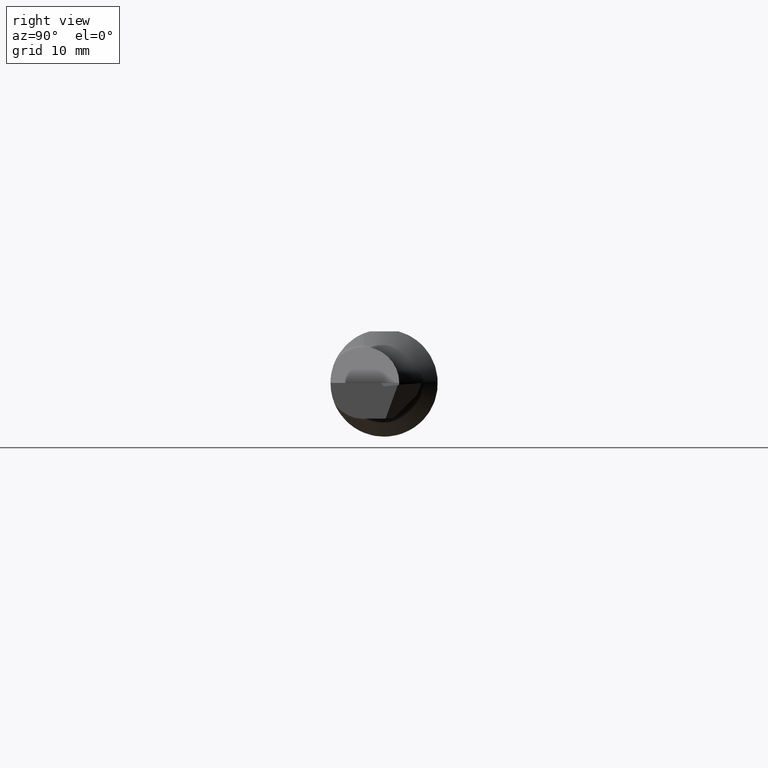
[diagram: clean part render]
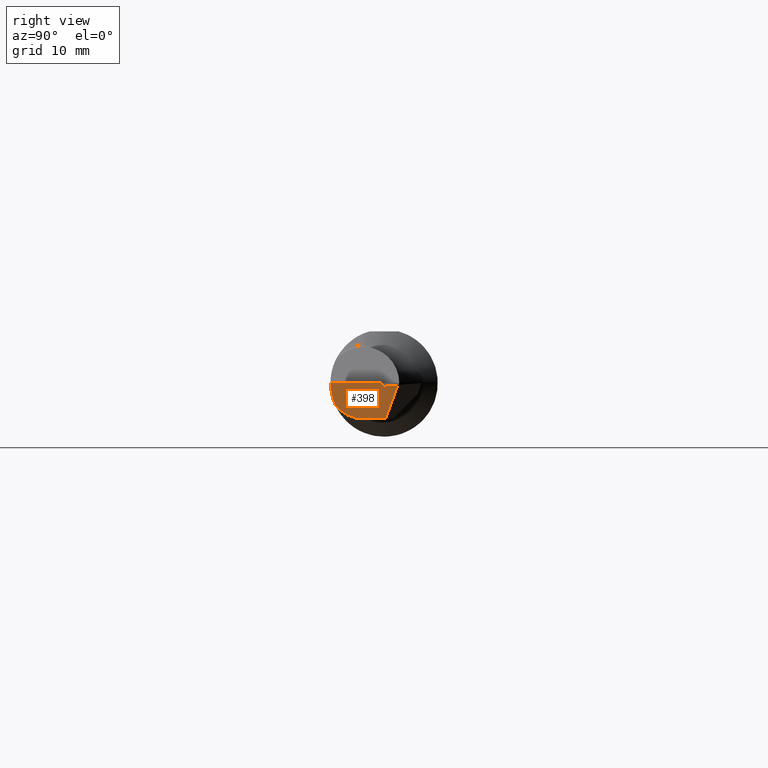
[diagram: same view with one face highlighted and labeled with its STEP entity id]
A machine part, right view. The second image highlights one B-rep face of the part: STEP entity #398.
In plain terms, the highlighted planar face has unit normal (1, 0, 0).
Its self-contained STEP definition (entity closure, byte-faithful):
#1 = PLANE ( 'NONE',  #1021 ) ;
#36 = B_SPLINE_CURVE_WITH_KNOTS ( 'NONE', 3,
 ( #960, #463, #977, #896 ),
 .UNSPECIFIED., .F., .F.,
 ( 4, 4 ),
 ( 0.01017863255098767905, 0.01059076445921217080 ),
 .UNSPECIFIED. ) ;
#45 = DIRECTION ( 'NONE',  ( 0.000000000000000000, 0.000000000000000000, -1.000000000000000000 ) ) ;
#71 = CIRCLE ( 'NONE', #890, 0.1250000000000000000 ) ;
#150 = VERTEX_POINT ( 'NONE', #363 ) ;
#158 = VERTEX_POINT ( 'NONE', #358 ) ;
#160 = LINE ( 'NONE', #305, #419 ) ;
#190 = EDGE_CURVE ( 'NONE', #457, #223, #663, .T. ) ;
#223 = VERTEX_POINT ( 'NONE', #608 ) ;
#224 = CARTESIAN_POINT ( 'NONE',  ( 2.500000000000000000, -0.0006403442574071630151, -0.01148636706028191568 ) ) ;
#228 = LINE ( 'NONE', #951, #716 ) ;
#236 = ORIENTED_EDGE ( 'NONE', *, *, #603, .T. ) ;
#243 = FACE_OUTER_BOUND ( 'NONE', #651, .T. ) ;
#270 = ORIENTED_EDGE ( 'NONE', *, *, #937, .T. ) ;
#278 = DIRECTION ( 'NONE',  ( 0.000000000000000000, -0.9961946980917451011, -0.08715574274766289820 ) ) ;
#305 = CARTESIAN_POINT ( 'NONE',  ( 2.500000000000000000, 0.2999999999999999889, -6.429183357567480113E-17 ) ) ;
#316 = DIRECTION ( 'NONE',  ( 1.000000000000000000, 0.000000000000000000, 0.000000000000000000 ) ) ;
#330 = CARTESIAN_POINT ( 'NONE',  ( 2.500000000000000000, -0.1873499999999998222, -6.429183357567480113E-17 ) ) ;
#358 = CARTESIAN_POINT ( 'NONE',  ( 2.500000000000000000, 0.04786391756742805481, -0.007242794017915452423 ) ) ;
#363 = CARTESIAN_POINT ( 'NONE',  ( 2.500000000000000000, -0.07234999999999983111, -0.1249999999999999861 ) ) ;
#373 = EDGE_CURVE ( 'NONE', #457, #826, #160, .T. ) ;
#374 = EDGE_CURVE ( 'NONE', #158, #385, #576, .T. ) ;
#384 = CARTESIAN_POINT ( 'NONE',  ( 2.500000000000000000, 0.000000000000000000, 0.000000000000000000 ) ) ;
#385 = VERTEX_POINT ( 'NONE', #971 ) ;
#390 = DIRECTION ( 'NONE',  ( 1.000000000000000000, -0.000000000000000000, -0.000000000000000000 ) ) ;
#398 = ADVANCED_FACE ( 'NONE', ( #243 ), #1, .T. ) ;
#419 = VECTOR ( 'NONE', #548, 39.37007874015748143 ) ;
#453 = ORIENTED_EDGE ( 'NONE', *, *, #373, .F. ) ;
#457 = VERTEX_POINT ( 'NONE', #330 ) ;
#459 = CARTESIAN_POINT ( 'NONE',  ( 2.500000000000000000, 0.04458993030273424724, -0.01623493656933642365 ) ) ;
#463 = CARTESIAN_POINT ( 'NONE',  ( 2.500000000000000000, -0.004461029989535027739, -0.007658133948572570446 ) ) ;
#477 = DIRECTION ( 'NONE',  ( 0.000000000000000000, -0.3421230293284966972, -0.9396551669645054616 ) ) ;
#478 = ORIENTED_EDGE ( 'NONE', *, *, #374, .F. ) ;
#513 = LINE ( 'NONE', #684, #522 ) ;
#522 = VECTOR ( 'NONE', #278, 39.37007874015748143 ) ;
#548 = DIRECTION ( 'NONE',  ( -0.000000000000000000, 1.000000000000000000, -0.000000000000000000 ) ) ;
#576 = LINE ( 'NONE', #459, #803 ) ;
#603 = EDGE_CURVE ( 'NONE', #158, #730, #513, .T. ) ;
#608 = CARTESIAN_POINT ( 'NONE',  ( 2.500000000000000000, -0.1707639599170699962, -0.07706940050007722587 ) ) ;
#616 = CARTESIAN_POINT ( 'NONE',  ( 2.500000000000000000, 0.000000000000000000, 0.000000000000000000 ) ) ;
#630 = CARTESIAN_POINT ( 'NONE',  ( 2.500000000000000000, -0.01210074471316514681, -6.429183357567480113E-17 ) ) ;
#651 = EDGE_LOOP ( 'NONE', ( #478, #236, #841, #453, #1012, #929, #270 ) ) ;
#663 = CIRCLE ( 'NONE', #799, 0.1873499999999999888 ) ;
#684 = CARTESIAN_POINT ( 'NONE',  ( 2.500000000000000000, 0.0009924292199578949644, -0.01134351789090676070 ) ) ;
#705 = DIRECTION ( 'NONE',  ( -0.000000000000000000, 1.000000000000000000, -2.417245856451658229E-16 ) ) ;
#716 = VECTOR ( 'NONE', #705, 39.37007874015748143 ) ;
#730 = VERTEX_POINT ( 'NONE', #224 ) ;
#748 = EDGE_CURVE ( 'NONE', #223, #150, #71, .T. ) ;
#764 = EDGE_CURVE ( 'NONE', #730, #826, #36, .T. ) ;
#799 = AXIS2_PLACEMENT_3D ( 'NONE', #616, #945, #45 ) ;
#803 = VECTOR ( 'NONE', #477, 39.37007874015748143 ) ;
#811 = DIRECTION ( 'NONE',  ( 0.000000000000000000, 0.000000000000000000, 1.000000000000000000 ) ) ;
#826 = VERTEX_POINT ( 'NONE', #630 ) ;
#841 = ORIENTED_EDGE ( 'NONE', *, *, #764, .T. ) ;
#890 = AXIS2_PLACEMENT_3D ( 'NONE', #954, #390, #811 ) ;
#896 = CARTESIAN_POINT ( 'NONE',  ( 2.500000000000000000, -0.01210074471316514681, -6.429183357567480113E-17 ) ) ;
#897 = DIRECTION ( 'NONE',  ( 0.000000000000000000, 0.000000000000000000, -1.000000000000000000 ) ) ;
#929 = ORIENTED_EDGE ( 'NONE', *, *, #748, .T. ) ;
#937 = EDGE_CURVE ( 'NONE', #150, #385, #228, .T. ) ;
#945 = DIRECTION ( 'NONE',  ( 1.000000000000000000, 0.000000000000000000, 0.000000000000000000 ) ) ;
#951 = CARTESIAN_POINT ( 'NONE',  ( 2.500000000000000000, 0.1395529379841212725, -0.1250000000000000278 ) ) ;
#954 = CARTESIAN_POINT ( 'NONE',  ( 2.500000000000000000, -0.07234999999999980336, 0.000000000000000000 ) ) ;
#960 = CARTESIAN_POINT ( 'NONE',  ( 2.500000000000000000, -0.0006403442574071630151, -0.01148636706028191568 ) ) ;
#971 = CARTESIAN_POINT ( 'NONE',  ( 2.500000000000000000, 0.004989197721001285488, -0.1250000000000000278 ) ) ;
#977 = CARTESIAN_POINT ( 'NONE',  ( 2.500000000000000000, -0.008281158601748715362, -0.003829340023130407399 ) ) ;
#1012 = ORIENTED_EDGE ( 'NONE', *, *, #190, .T. ) ;
#1021 = AXIS2_PLACEMENT_3D ( 'NONE', #384, #316, #897 ) ;